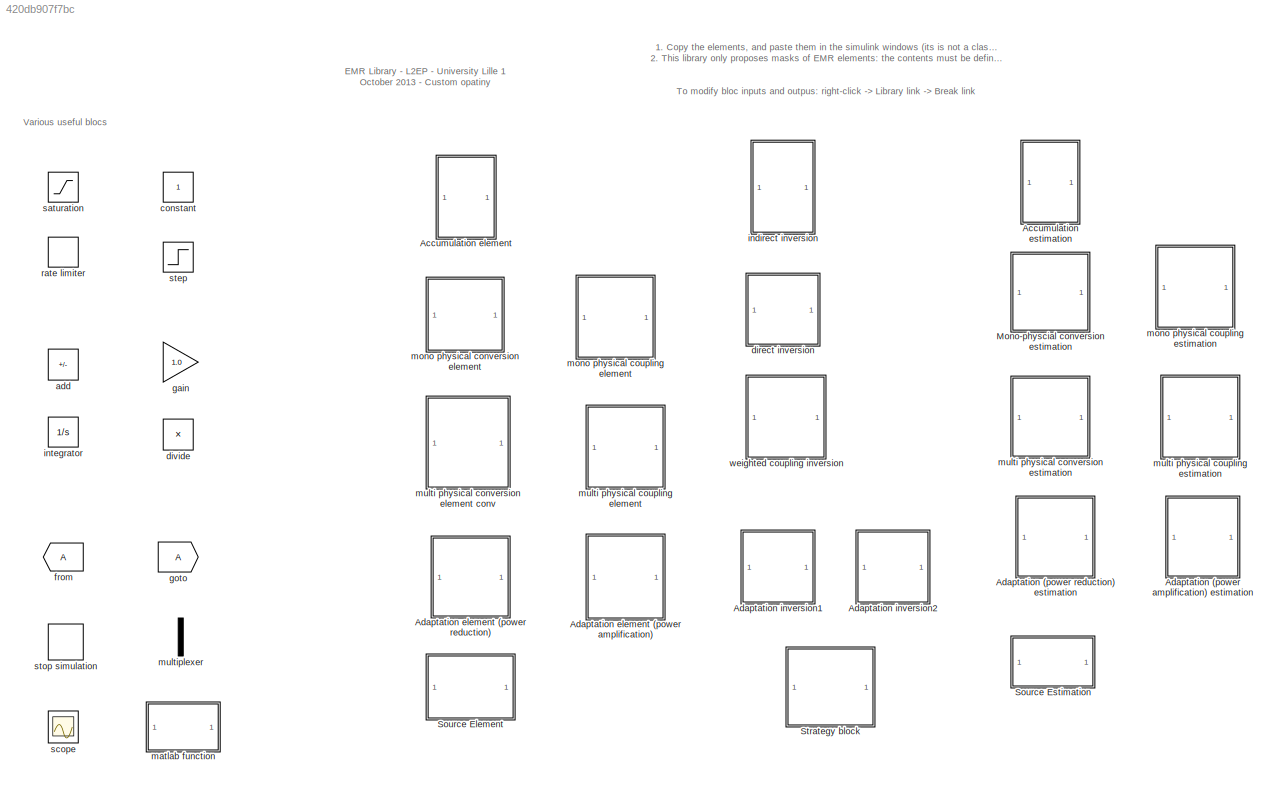
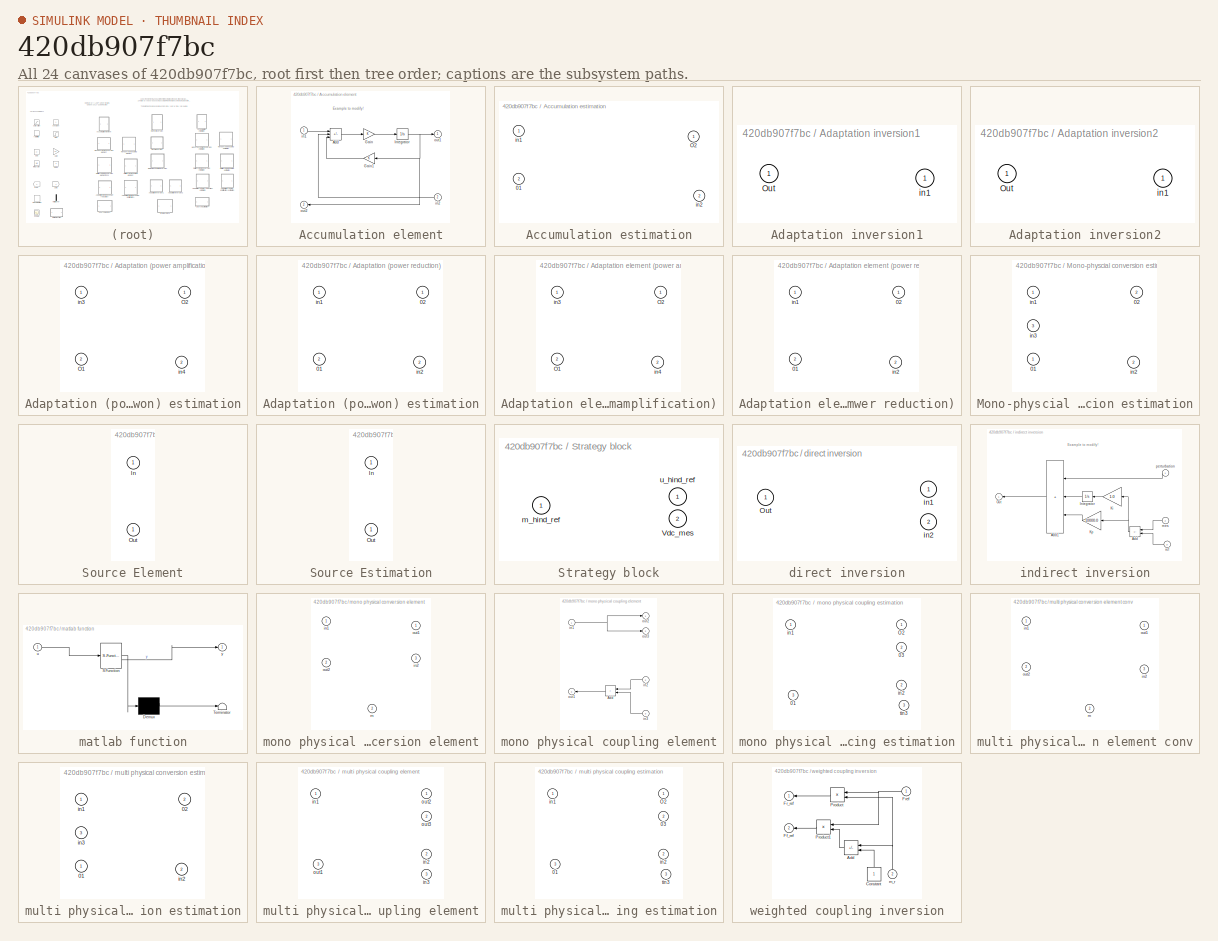
[diagram: thumbnail index - all 24 canvases of the model, root first then tree order]
MODEL slx_420db907f7bc
KIND model
CONFIG AbsTol = auto
CONFIG EnableMultiTasking = on
CONFIG FixedStep = auto
CONFIG MaxStep = auto
CONFIG MinStep = auto
CONFIG RelTol = 1e-3
CONFIG SampleTimeConstraint = Unconstrained
CONFIG SolverName = ode45
CONFIG StartTime = 0.0
CONFIG StopTime = 10.0
BLOCK [SubSystem] Accumulation element
  NameLocation = top
  PortSchema = {"entries":[{"content":{"sides":[{"content":{"connectorIds":["In1","Out2"]},"type":"ConnectorPlacement.EquallySpacedRectSide","uuid":"ce6d3bac-983c-4cc2-8cf0-29bd76c88970"},{"content":{"connectorIds":["Out1","In2"],"side":"RIGHT"},"type":"ConnectorPlacement.EquallySpacedRectSide","uuid":"5515666e-487b-4d04-97a1-137c298a6b81"},{"content":{"side":"TOP"},"type":"ConnectorPlacement.EquallySpacedRectSi...<+235ch>
BLOCK [Sum] Accumulation element/Add
  IconShape = rectangular
  Inputs = +--
BLOCK [Gain] Accumulation element/Gain
BLOCK [Gain] Accumulation element/Gain1
  NameLocation = top
BLOCK [Integrator] Accumulation element/Integrator
BLOCK [Inport] Accumulation element/in1
  NameLocation = top
BLOCK [Inport] Accumulation element/in2
  NameLocation = top
  Port = 2
BLOCK [Outport] Accumulation element/out1
  InitialOutput = 0
  NameLocation = top
BLOCK [Outport] Accumulation element/out2
  InitialOutput = 0
  NameLocation = top
  Port = 2
BLOCK [SubSystem] Accumulation estimation
  AncestorBlock = simulink/REM/EA
BLOCK [Outport] Accumulation estimation/01
  InitialOutput = 0
  Port = 2
BLOCK [Outport] Accumulation estimation/O2
  InitialOutput = 0
BLOCK [Inport] Accumulation estimation/in1
BLOCK [Inport] Accumulation estimation/in2
  Port = 2
BLOCK [SubSystem] Adaptation (power amplification) estimation
  AncestorBlock = simulink/REM/EA
BLOCK [Outport] Adaptation (power amplification) estimation/O1
  InitialOutput = 0
  Port = 2
BLOCK [Outport] Adaptation (power amplification) estimation/O2
  InitialOutput = 0
BLOCK [Inport] Adaptation (power amplification) estimation/in3
BLOCK [Inport] Adaptation (power amplification) estimation/in4
  Port = 2
BLOCK [SubSystem] Adaptation (power reduction) estimation
  AncestorBlock = simulink/REM/EA
BLOCK [Outport] Adaptation (power reduction) estimation/01
  InitialOutput = 0
  Port = 2
BLOCK [Outport] Adaptation (power reduction) estimation/02
  InitialOutput = 0
BLOCK [Inport] Adaptation (power reduction) estimation/in1
BLOCK [Inport] Adaptation (power reduction) estimation/in2
  Port = 2
BLOCK [SubSystem] Adaptation element (power amplification)
  AncestorBlock = simulink/REM/EA
  NameLocation = top
BLOCK [Outport] Adaptation element (power amplification)/O1
  InitialOutput = 0
  Port = 2
BLOCK [Outport] Adaptation element (power amplification)/O2
  InitialOutput = 0
BLOCK [Inport] Adaptation element (power amplification)/in3
BLOCK [Inport] Adaptation element (power amplification)/in4
  Port = 2
BLOCK [SubSystem] Adaptation element (power reduction)
  NameLocation = top
BLOCK [Outport] Adaptation element (power reduction)/01
  InitialOutput = 0
  Port = 2
BLOCK [Outport] Adaptation element (power reduction)/02
  InitialOutput = 0
BLOCK [Inport] Adaptation element (power reduction)/in1
BLOCK [Inport] Adaptation element (power reduction)/in2
  Port = 2
BLOCK [SubSystem] Adaptation inversion1
  AncestorBlock = simulink/SMC/Inversion EC\navec mesure
BLOCK [Outport] Adaptation inversion1/Out
  InitialOutput = 0
BLOCK [Inport] Adaptation inversion1/in1
  NameLocation = top
BLOCK [SubSystem] Adaptation inversion2
  AncestorBlock = simulink/SMC/Inversion EC\navec mesure
BLOCK [Outport] Adaptation inversion2/Out
  InitialOutput = 0
BLOCK [Inport] Adaptation inversion2/in1
  NameLocation = top
BLOCK [SubSystem] Mono-physcial conversion estimation
  AncestorBlock = simulink/REM/EC Elec
BLOCK [Outport] Mono-physcial conversion estimation/01
  InitialOutput = 0
BLOCK [Outport] Mono-physcial conversion estimation/02
  InitialOutput = 0
  Port = 2
BLOCK [Inport] Mono-physcial conversion estimation/in1
BLOCK [Inport] Mono-physcial conversion estimation/in2
  Port = 2
BLOCK [Inport] Mono-physcial conversion estimation/in3
  Port = 3
BLOCK [SubSystem] Source Element
  AncestorBlock = simulink/REM/SE
BLOCK [Inport] Source Element/In
BLOCK [Outport] Source Element/Out
  InitialOutput = 0
  NameLocation = top
BLOCK [SubSystem] Source Estimation
  AncestorBlock = simulink/REM/SE
BLOCK [Inport] Source Estimation/In
BLOCK [Outport] Source Estimation/Out
  InitialOutput = 0
  NameLocation = top
BLOCK [SubSystem] Strategy block
  AncestorBlock = simulink/SMC/Inversion EC\navec mesure
BLOCK [Inport] Strategy block/Vdc_mes
  Port = 2
BLOCK [Outport] Strategy block/m_hind_ref
  InitialOutput = 0
BLOCK [Inport] Strategy block/u_hind_ref
  NameLocation = top
BLOCK [Sum] add
  IconShape = rectangular
  Inputs = -+
BLOCK [Constant] constant
BLOCK [SubSystem] direct inversion
  AncestorBlock = simulink/SMC/Inversion EC\navec mesure
BLOCK [Outport] direct inversion/Out
  InitialOutput = 0
BLOCK [Inport] direct inversion/in1
  NameLocation = top
BLOCK [Inport] direct inversion/in2
  NameLocation = top
  Port = 2
BLOCK [Product] divide
  Inputs = */
BLOCK [From] from
BLOCK [Gain] gain
  Gain = 1.0
BLOCK [Goto] goto
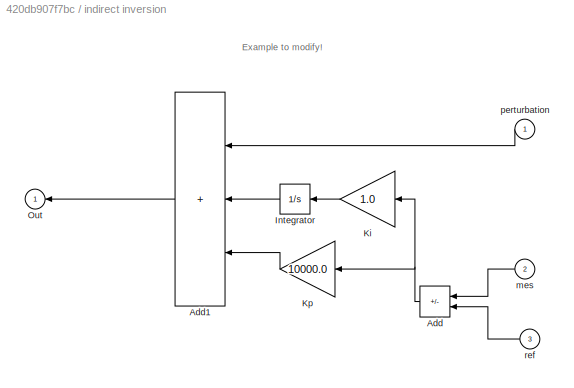
BLOCK [SubSystem] indirect inversion
  AncestorBlock = simulink/SMC/Asservissement\nCorrecteur IP
BLOCK [Sum] indirect inversion/Add
  IconShape = rectangular
  Inputs = -+
  NameLocation = top
BLOCK [Sum] indirect inversion/Add1
  IconShape = rectangular
  Inputs = +++
  NameLocation = top
BLOCK [Integrator] indirect inversion/Integrator
  NameLocation = top
BLOCK [Gain] indirect inversion/Ki
  Gain = 1.0
  NameLocation = top
BLOCK [Gain] indirect inversion/Kp
  Gain = 10000.0
  NameLocation = top
BLOCK [Outport] indirect inversion/Out
  InitialOutput = 0
BLOCK [Inport] indirect inversion/mes
  NameLocation = top
  Port = 2
BLOCK [Inport] indirect inversion/perturbation
  NameLocation = top
BLOCK [Inport] indirect inversion/ref
  Port = 3
BLOCK [Integrator] integrator
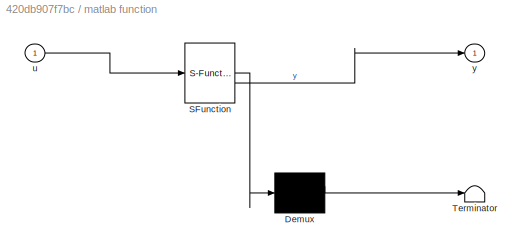
BLOCK [SubSystem] matlab function
  ErrorFcn = Stateflow.Translate.translate
  PermitHierarchicalResolution = ExplicitOnly
  SFBlockType = MATLAB Function
  TreatAsAtomicUnit = on
BLOCK [Demux] matlab function/ Demux 
  Outputs = 1
BLOCK [S-Function] matlab function/ SFunction 
  EnableBusSupport = off
  FunctionName = sf_sfun
  PortCounts = [1 2]
  SFcnIsStateOwnerBlock = off
  SFunctionDeploymentMode = off
  Tag = Stateflow S-Function 2
BLOCK [Terminator] matlab function/ Terminator 
BLOCK [Inport] matlab function/u
BLOCK [Outport] matlab function/y
BLOCK [SubSystem] mono physical conversion element
  NameLocation = top
  PortSchema = {"entries":[{"content":{"sides":[{"content":{"connectorIds":["In1","Out2"]},"type":"ConnectorPlacement.EquallySpacedRectSide","uuid":"62d3361f-f49a-4a89-b7fa-c77fcee42868"},{"content":{"connectorIds":["Out1","In3"],"side":"RIGHT"},"type":"ConnectorPlacement.EquallySpacedRectSide","uuid":"da99363c-611b-4582-b369-34120805217f"},{"content":{"side":"TOP"},"type":"ConnectorPlacement.EquallySpacedRectSi...<+384ch>
BLOCK [Inport] mono physical conversion element/in1
BLOCK [Inport] mono physical conversion element/in2
  Port = 3
BLOCK [Inport] mono physical conversion element/m
  NameLocation = right
  Port = 2
BLOCK [Outport] mono physical conversion element/out1
  InitialOutput = 0
  NameLocation = top
BLOCK [Outport] mono physical conversion element/out2
  InitialOutput = 0
  NameLocation = top
  Port = 2
BLOCK [SubSystem] mono physical coupling element
  NameLocation = top
  PortSchema = {"entries":[{"content":{"sides":[{"content":{"connectorIds":["In1","Out3"]},"type":"ConnectorPlacement.EquallySpacedRectSide","uuid":"a0cc6eb3-0f35-4a31-afc0-a3cae9b9d5bb"},{"content":{"connectorIds":["Out1","In2","Out2","In3"],"side":"RIGHT"},"type":"ConnectorPlacement.EquallySpacedRectSide","uuid":"f0fc86c1-6f18-402b-9eea-d081ace87e62"},{"content":{"connectorIds":[],"side":"TOP"},"type":"Connect...<+266ch>
BLOCK [Sum] mono physical coupling element/Add
  IconShape = rectangular
  NameLocation = top
BLOCK [Inport] mono physical coupling element/in1
BLOCK [Inport] mono physical coupling element/in2
  NameLocation = top
  Port = 2
BLOCK [Inport] mono physical coupling element/in3
  NameLocation = top
  Port = 3
BLOCK [Outport] mono physical coupling element/out1
  InitialOutput = 0
  Port = 3
  VectorParamsAs1DForOutWhenUnconnected = off
BLOCK [Outport] mono physical coupling element/out2
  InitialOutput = 0
  VectorParamsAs1DForOutWhenUnconnected = off
BLOCK [Outport] mono physical coupling element/out3
  InitialOutput = 0
  Port = 2
  VectorParamsAs1DForOutWhenUnconnected = off
BLOCK [SubSystem] mono physical coupling estimation
BLOCK [Outport] mono physical coupling estimation/01
  InitialOutput = 0
  Port = 3
BLOCK [Outport] mono physical coupling estimation/03
  InitialOutput = 0
  Port = 2
BLOCK [Outport] mono physical coupling estimation/O2
  InitialOutput = 0
BLOCK [Inport] mono physical coupling estimation/in1
BLOCK [Inport] mono physical coupling estimation/in2
  NameLocation = top
  Port = 2
BLOCK [Inport] mono physical coupling estimation/tin3
  NameLocation = top
  Port = 3
BLOCK [SubSystem] multi physical conversion element conv
  NameLocation = top
  PortSchema = {"entries":[{"content":{"sides":[{"content":{"connectorIds":["In1","Out2"]},"type":"ConnectorPlacement.EquallySpacedRectSide","uuid":"61fbc010-38ff-4a80-98f4-f5d8a9e77fd8"},{"content":{"connectorIds":["Out1","In3"],"side":"RIGHT"},"type":"ConnectorPlacement.EquallySpacedRectSide","uuid":"7ae9e15d-ee0f-4ba6-b3b7-5dcbca441e0a"},{"content":{"connectorIds":[],"side":"TOP"},"type":"ConnectorPlacement.E...<+402ch>
BLOCK [Inport] multi physical conversion element conv/in1
BLOCK [Inport] multi physical conversion element conv/in2
  Port = 3
BLOCK [Inport] multi physical conversion element conv/m
  Port = 2
BLOCK [Outport] multi physical conversion element conv/out1
  InitialOutput = 0
BLOCK [Outport] multi physical conversion element conv/out2
  InitialOutput = 0
  Port = 2
BLOCK [SubSystem] multi physical conversion estimation
  AncestorBlock = simulink/REM/EC EM
BLOCK [Outport] multi physical conversion estimation/01
  InitialOutput = 0
BLOCK [Outport] multi physical conversion estimation/02
  InitialOutput = 0
  Port = 2
BLOCK [Inport] multi physical conversion estimation/in1
BLOCK [Inport] multi physical conversion estimation/in2
  Port = 2
BLOCK [Inport] multi physical conversion estimation/in3
  Port = 3
BLOCK [SubSystem] multi physical coupling element
  NameLocation = top
BLOCK [Inport] multi physical coupling element/in1
BLOCK [Inport] multi physical coupling element/in2
  NameLocation = top
  Port = 2
BLOCK [Inport] multi physical coupling element/in3
  NameLocation = top
  Port = 3
BLOCK [Outport] multi physical coupling element/out1
  InitialOutput = 0
  Port = 3
BLOCK [Outport] multi physical coupling element/out2
  InitialOutput = 0
BLOCK [Outport] multi physical coupling element/out3
  InitialOutput = 0
  Port = 2
BLOCK [SubSystem] multi physical coupling estimation
BLOCK [Outport] multi physical coupling estimation/01
  InitialOutput = 0
  Port = 3
BLOCK [Outport] multi physical coupling estimation/03
  InitialOutput = 0
  Port = 2
BLOCK [Outport] multi physical coupling estimation/O2
  InitialOutput = 0
BLOCK [Inport] multi physical coupling estimation/in1
BLOCK [Inport] multi physical coupling estimation/in2
  NameLocation = top
  Port = 2
BLOCK [Inport] multi physical coupling estimation/tin3
  NameLocation = top
  Port = 3
BLOCK [Mux] multiplexer
  DisplayOption = bar
  Inputs = 2
BLOCK [RateLimiter] rate limiter
  SampleTimeMode = inherited
BLOCK [Saturate] saturation
BLOCK [Scope] scope
  Floating = off
  GraphicalSettings = {"GraphicalSettings":{"LegacySettings":true,"Style":{"Style":{"PlotType":"Auto"}}}}
  NumInputPorts = 1
  WasSavedAsWebScope = on
BLOCK [Step] step
  SampleTime = 0
BLOCK [Stop] stop simulation
BLOCK [SubSystem] weighted coupling inversion
  PortSchema = {"entries":[{"content":{"sides":[{"content":{"connectorIds":["In1"]},"type":"ConnectorPlacement.EquallySpacedRectSide","uuid":"b9cb5e2e-d323-42b7-849c-39be921832eb"},{"content":{"connectorIds":["Out1","Out2"],"side":"RIGHT"},"type":"ConnectorPlacement.EquallySpacedRectSide","uuid":"457911f2-4e07-4896-a1c0-9331a364b989"},{"content":{"side":"TOP"},"type":"ConnectorPlacement.EquallySpacedRectSide","u...<+378ch>
BLOCK [Sum] weighted coupling inversion/Add
  IconShape = rectangular
  Inputs = -+
  NameLocation = top
BLOCK [Constant] weighted coupling inversion/Constant
  NameLocation = right
BLOCK [Outport] weighted coupling inversion/Ff_ref
  InitialOutput = 0
  Port = 2
BLOCK [Outport] weighted coupling inversion/Fr_ref
  InitialOutput = 0
BLOCK [Inport] weighted coupling inversion/Fref
BLOCK [Product] weighted coupling inversion/Product
  NameLocation = top
BLOCK [Product] weighted coupling inversion/Product1
  NameLocation = top
BLOCK [Inport] weighted coupling inversion/m_r
  Port = 2
ANNOTATION (root): EMR Library - L2EP - University Lille 1 October 2013 - Custom opatiny
ANNOTATION (root): 1. Copy the elements, and paste them in the simulink windows (its is not a classical Matlab library) 2. This library only proposes masks of EMR elements: the contents must be defined
ANNOTATION (root): Various useful blocs
ANNOTATION (root): To modify bloc inputs and outpus: right-click -> Library link -> Break link
ANNOTATION Accumulation element: Example to modify!
ANNOTATION indirect inversion: Example to modify!
LINE Accumulation element/Add:1 -> Accumulation element/Gain:1
LINE Accumulation element/Gain1:1 -> Accumulation element/Add:3
LINE Accumulation element/Gain:1 -> Accumulation element/Integrator:1
NET Accumulation element/Integrator:1 -> Accumulation element/Gain1:1, Accumulation element/out1:1, Accumulation element/out2:1
LINE Accumulation element/in1:1 -> Accumulation element/Add:1
LINE Accumulation element/in2:1 -> Accumulation element/Add:2
LINE mono physical coupling element/Add:1 -> mono physical coupling element/out1:1
NET mono physical coupling element/in1:1 -> mono physical coupling element/out2:1, mono physical coupling element/out3:1
LINE mono physical coupling element/in2:1 -> mono physical coupling element/Add:1
LINE mono physical coupling element/in3:1 -> mono physical coupling element/Add:2
LINE weighted coupling inversion/Add:1 -> weighted coupling inversion/Product1:2
LINE weighted coupling inversion/Constant:1 -> weighted coupling inversion/Add:2
NET weighted coupling inversion/Fref:1 -> weighted coupling inversion/Product1:1, weighted coupling inversion/Product:1
LINE weighted coupling inversion/Product1:1 -> weighted coupling inversion/Ff_ref:1
LINE weighted coupling inversion/Product:1 -> weighted coupling inversion/Fr_ref:1
NET weighted coupling inversion/m_r:1 -> weighted coupling inversion/Add:1, weighted coupling inversion/Product:2
note: NET lines group one-source signal fan-out (src -> all destinations, sorted); 1:1 wires keep LINE
CHART matlab function states=1 transitions=1
  STATE_LABEL 'eML_blk_kernel()'
  STATE_LABEL 'SCRIPT:\nfunction y = fcn(u)\n\ny = u;\n'
CHART  states=0 transitions=0
